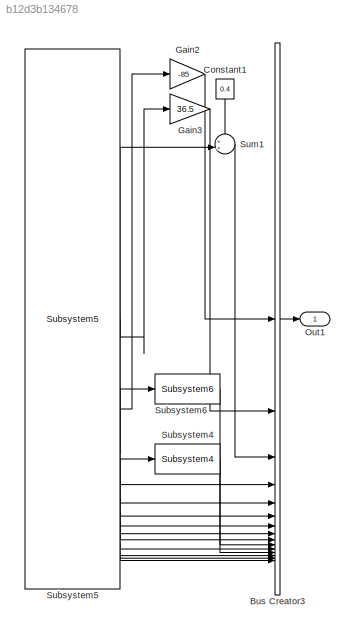
MODEL slx_b12d3b134678
KIND model
CONFIG AbsTol = auto
CONFIG EnableMultiTasking = off
CONFIG FixedStep = auto
CONFIG MaxStep = auto
CONFIG MinStep = auto
CONFIG RelTol = 1e-3
CONFIG SampleTimeConstraint = Unconstrained
CONFIG SolverName = VariableStepAuto
CONFIG StartTime = 0.0
CONFIG StopTime = 10.0
BLOCK [BusCreator] Bus Creator3
  DisplayOption = bar
  InheritFromInputs = on
  Inputs = 15
BLOCK [Constant] Constant1
  NameLocation = left
  Value = 0.4
BLOCK [Gain] Gain2
  Gain = -85
BLOCK [Gain] Gain3
  Gain = 36.5
BLOCK [Outport] Out1
BLOCK [Reference] Subsystem4  REF=MainLibrary/ROSmsg2PrescanPos/ROS msg to Prescan Pos/Subsystem4
  SourceBlock = MainLibrary/ROSmsg2PrescanPos/ROS msg to Prescan Pos/Subsystem4
  SourceProductName = Custom_Prescan-ROS_Library
  SourceType = SubSystem
BLOCK [Reference] Subsystem5  REF=MainLibrary/ROSmsg2PrescanPos/ROS msg to Prescan Pos/Subsystem5
  SourceBlock = MainLibrary/ROSmsg2PrescanPos/ROS msg to Prescan Pos/Subsystem5
  SourceProductName = Custom_Prescan-ROS_Library
  SourceType = SubSystem
BLOCK [Reference] Subsystem6  REF=MainLibrary/ROSmsg2PrescanPos/ROS msg to Prescan Pos/Subsystem6
  SourceBlock = MainLibrary/ROSmsg2PrescanPos/ROS msg to Prescan Pos/Subsystem6
  SourceProductName = Custom_Prescan-ROS_Library
  SourceType = SubSystem
BLOCK [Sum] Sum1
  Inputs = ++|
LINE Bus Creator3:1 -> Out1:1
LINE Constant1:1 -> Sum1:1
LINE Gain2:1 -> Bus Creator3:1
LINE Gain3:1 -> Bus Creator3:2
LINE Subsystem4:1 -> Bus Creator3:12
LINE Subsystem5:1 -> Gain3:1
LINE Subsystem5:10 -> Subsystem6:1
LINE Subsystem5:11 -> Bus Creator3:11
LINE Subsystem5:12 -> Subsystem4:1
LINE Subsystem5:13 -> Bus Creator3:13
LINE Subsystem5:14 -> Bus Creator3:14
LINE Subsystem5:15 -> Bus Creator3:15
LINE Subsystem5:2 -> Gain2:1
LINE Subsystem5:3 -> Sum1:2
LINE Subsystem5:4 -> Bus Creator3:4
LINE Subsystem5:5 -> Bus Creator3:5
LINE Subsystem5:6 -> Bus Creator3:6
LINE Subsystem5:7 -> Bus Creator3:7
LINE Subsystem5:8 -> Bus Creator3:8
LINE Subsystem5:9 -> Bus Creator3:9
LINE Subsystem6:1 -> Bus Creator3:10
LINE Sum1:1 -> Bus Creator3:3
